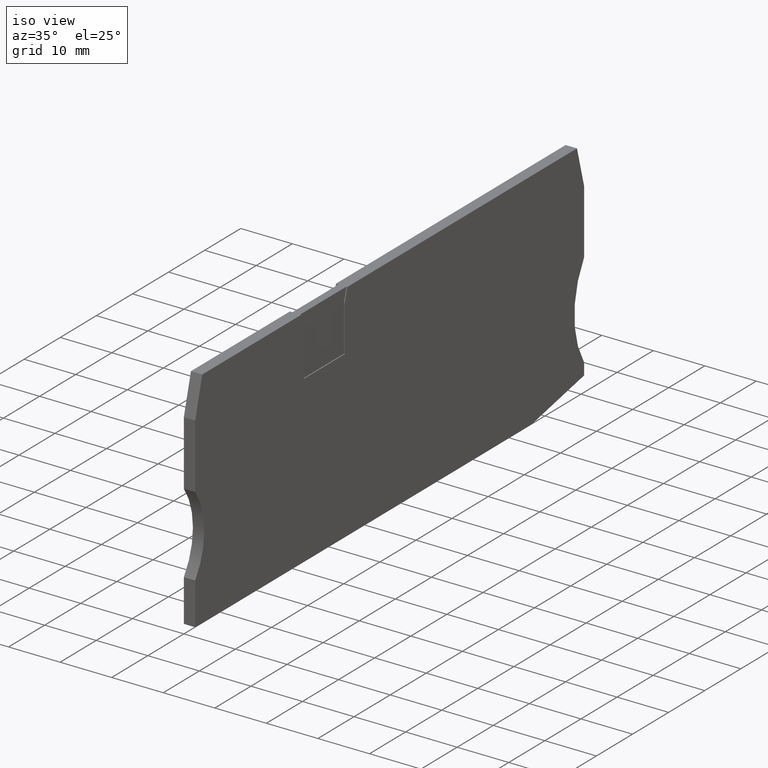
[diagram: clean part render]
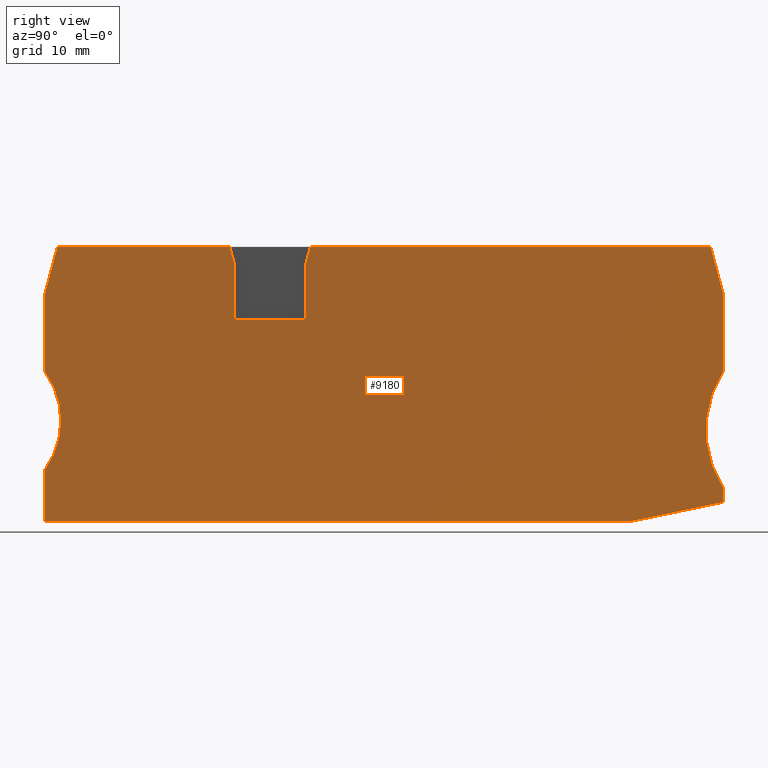
[diagram: tour spotlight — one face highlighted and labeled with its STEP entity id]
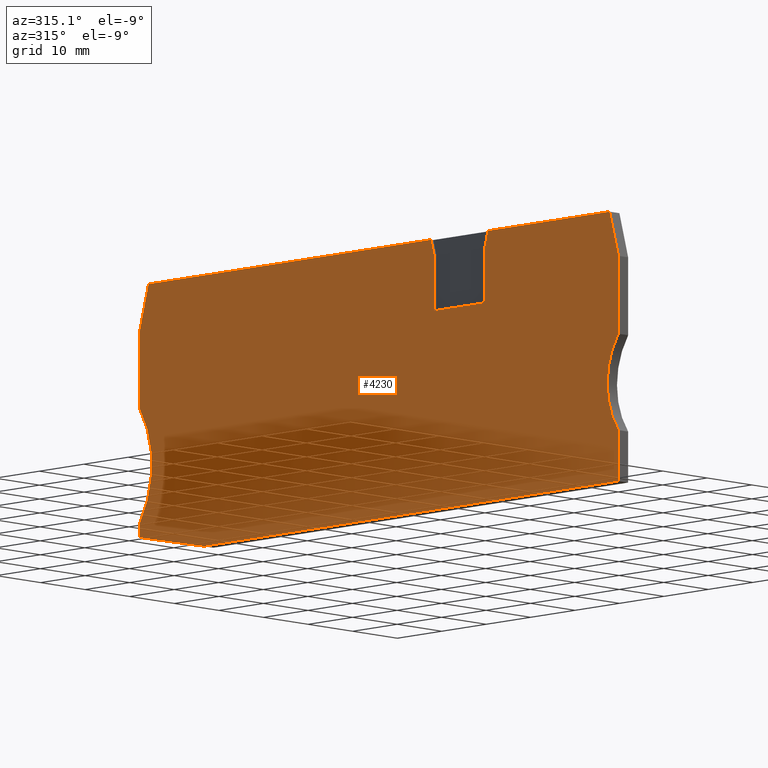
[diagram: tour spotlight — one face highlighted and labeled with its STEP entity id]
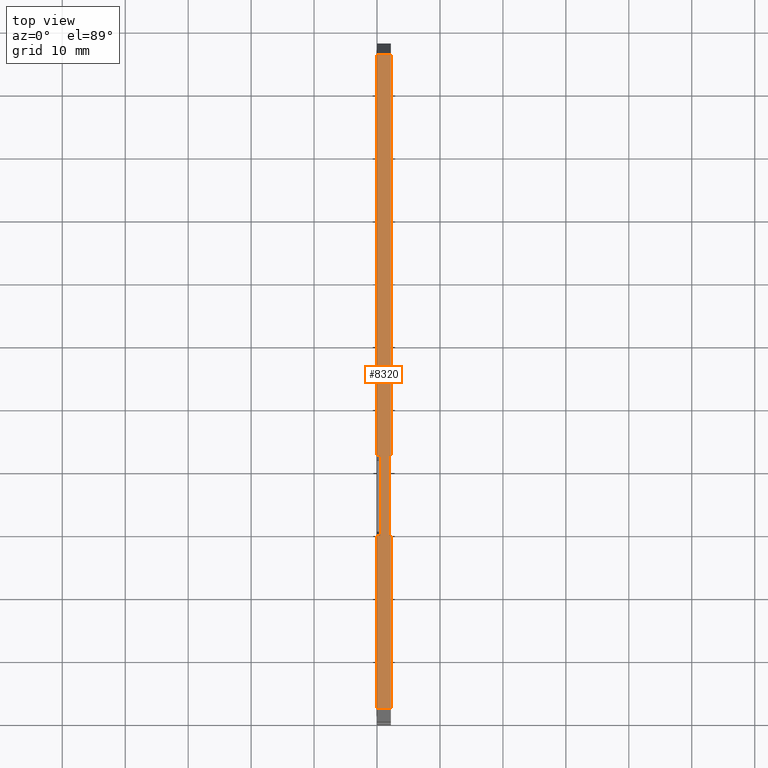
[diagram: tour spotlight — one face highlighted and labeled with its STEP entity id]
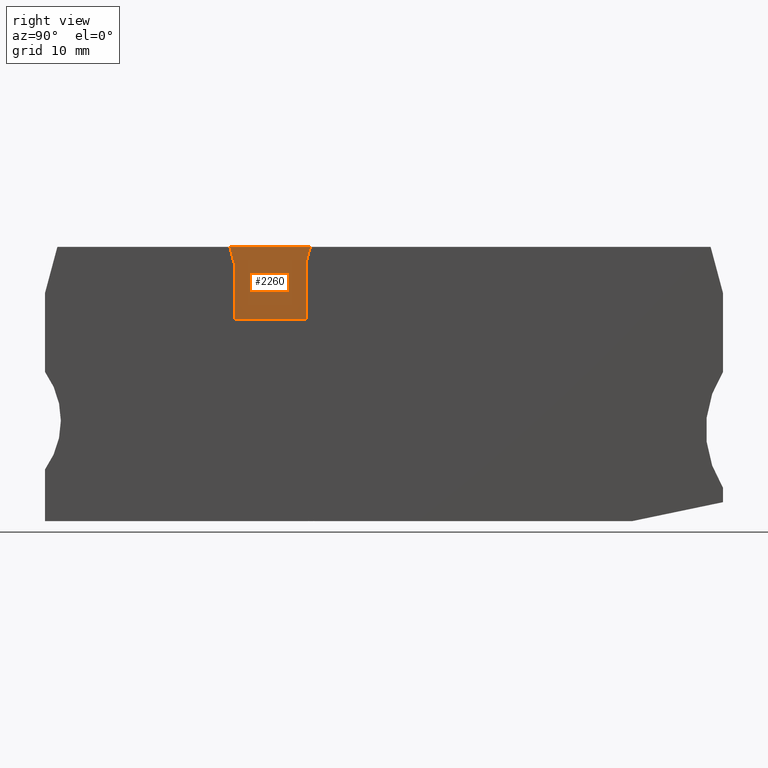
[diagram: tour spotlight — one face highlighted and labeled with its STEP entity id]
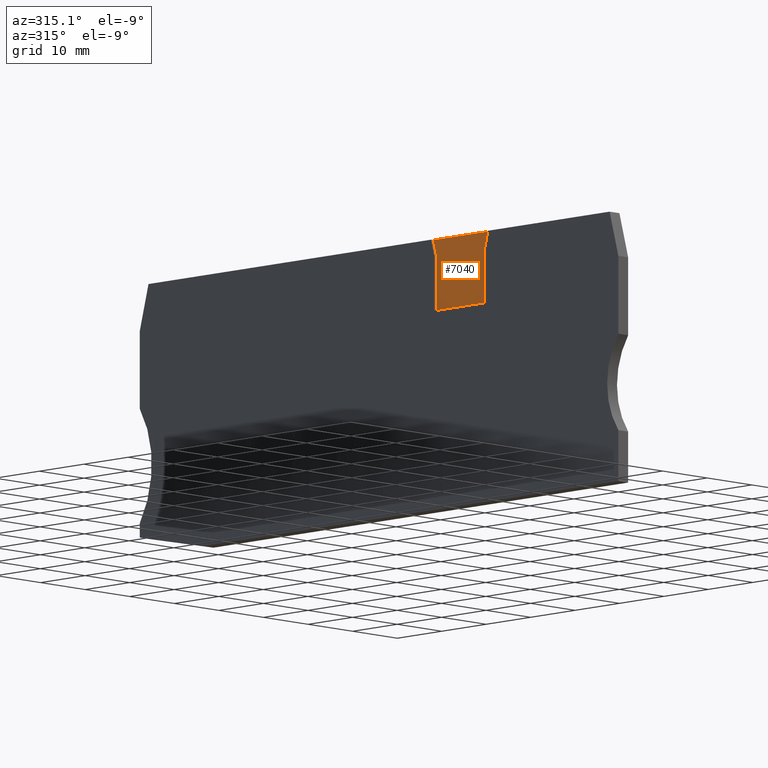
[diagram: tour spotlight — one face highlighted and labeled with its STEP entity id]
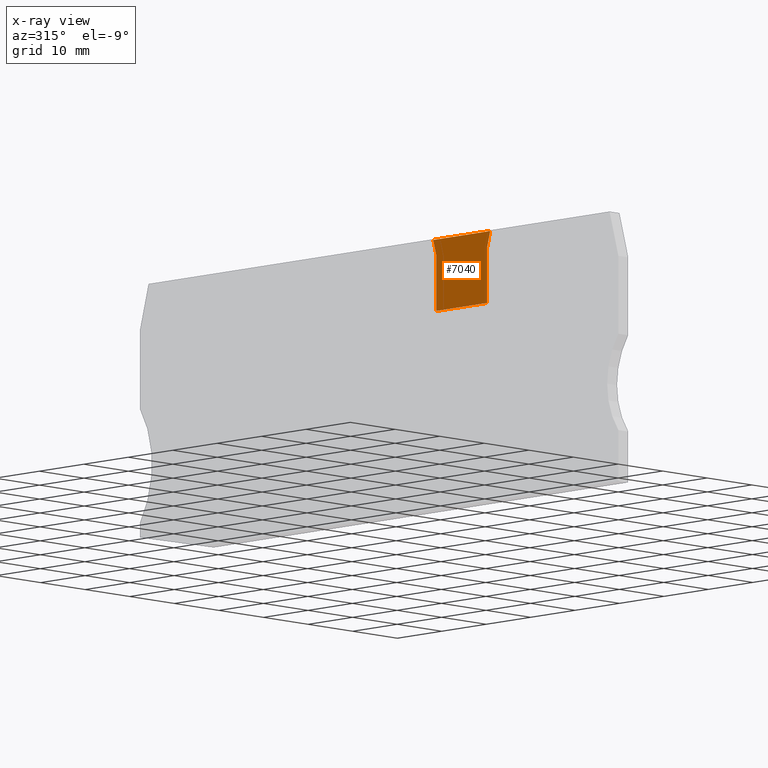
[diagram: x-ray of the same camera — body ghosted, this tour face saturated]
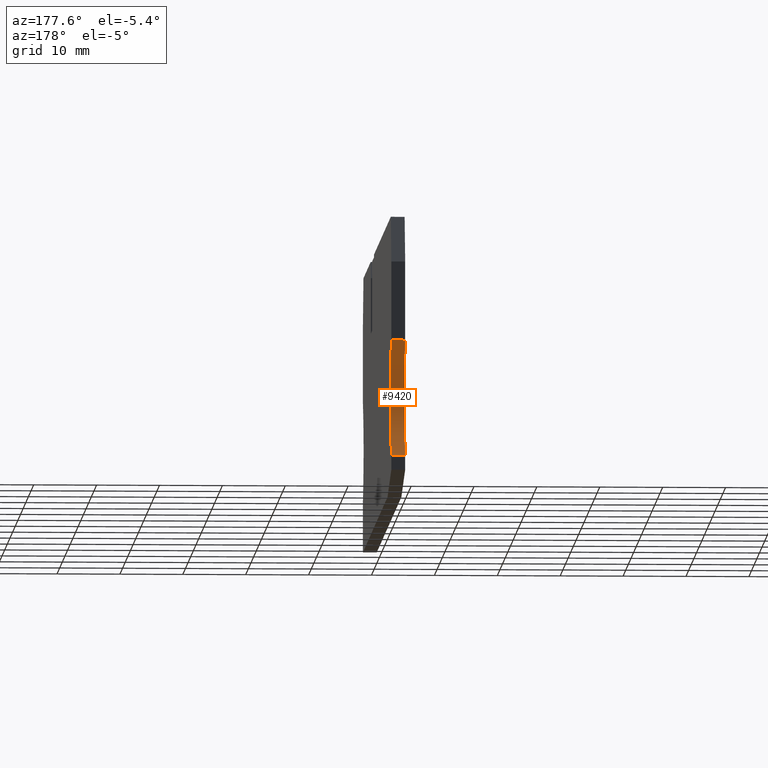
[diagram: tour spotlight — one face highlighted and labeled with its STEP entity id]
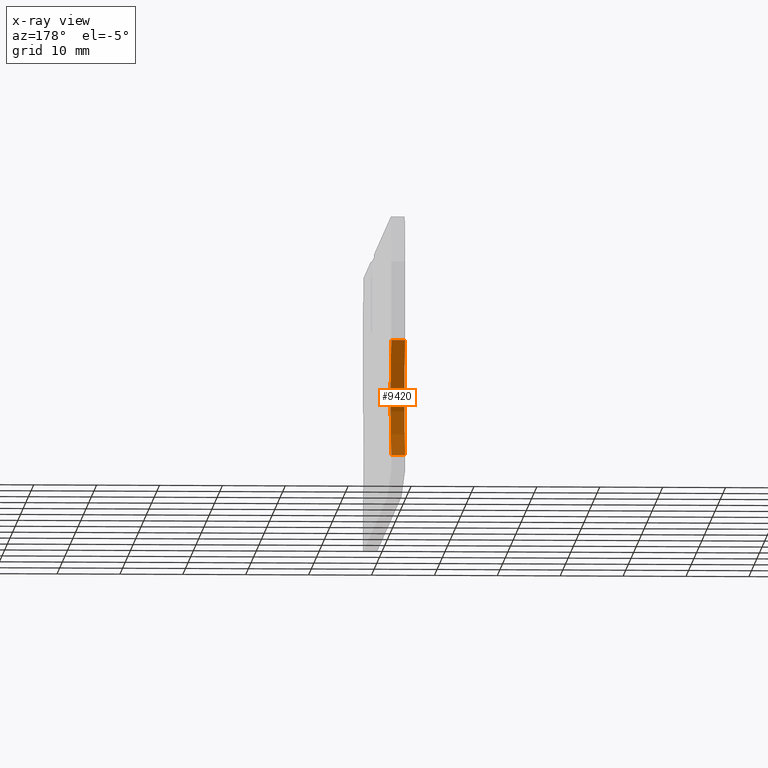
[diagram: x-ray of the same camera — body ghosted, this tour face saturated]
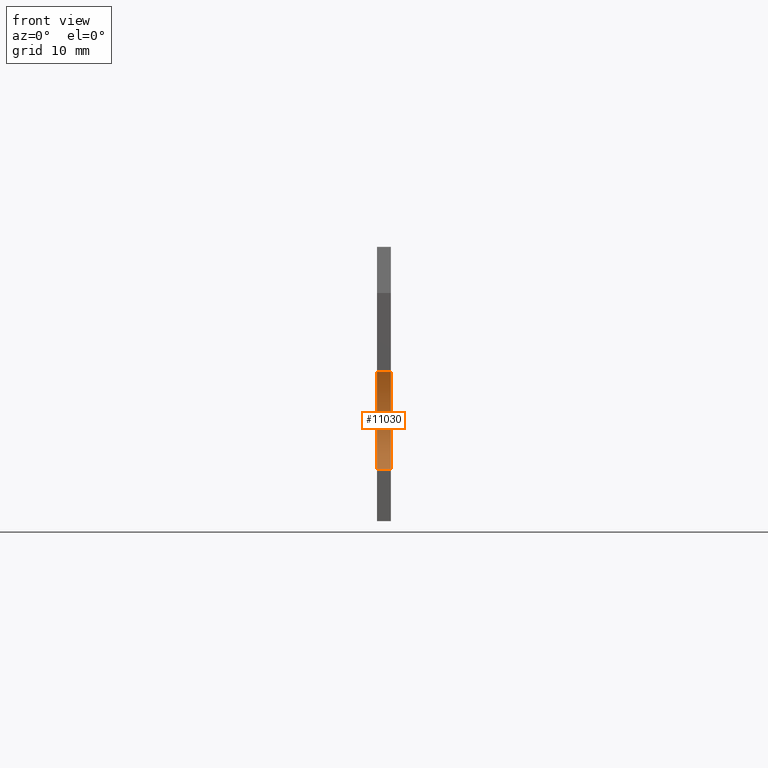
[diagram: tour spotlight — one face highlighted and labeled with its STEP entity id]
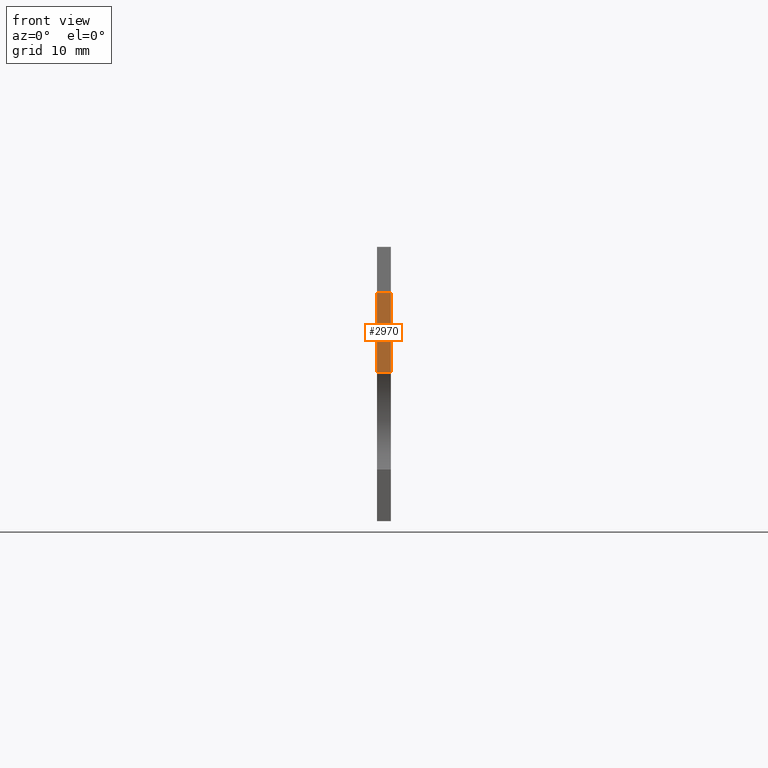
[diagram: tour spotlight — one face highlighted and labeled with its STEP entity id]
A machine part: a face-by-face anatomy tour. The part has 29 B-rep faces; the first image is the clean iso view, then the 8 largest visible faces are spotlighted one at a time (largest first), each with its STEP entity span.

Face 1 — right view, entity #9180. In plain terms, the highlighted planar face has unit normal (1, 0, -0).
Definition (entity closure, byte-faithful):
#60=CARTESIAN_POINT('',(-0.800000000000004,21.9231577655584,
11.999999999999));
#70=DIRECTION('',(0.,1.,3.03161873061274E-15));
#80=VECTOR('',#70,1.);
#90=LINE('',#60,#80);
#100=CARTESIAN_POINT('',(-0.800000000000004,0.199999999999154,
11.9999999999989));
#110=VERTEX_POINT('',#100);
#120=CARTESIAN_POINT('',(-0.800000000000004,0.222246685659826,
11.9999999999989));
#130=VERTEX_POINT('',#120);
#140=EDGE_CURVE('',#110,#130,#90,.T.);
#460=CARTESIAN_POINT('',(-6.9708756914192,0.199999999999154,
11.999999999999));
#470=DIRECTION('',(1.,0.,-2.46209646432131E-14));
#480=VECTOR('',#470,1.);
#490=LINE('',#460,#480);
#500=CARTESIAN_POINT('',(-42.550000000006,0.199999999999154,
11.9999999999999));
#510=VERTEX_POINT('',#500);
#520=EDGE_CURVE('',#510,#110,#490,.T.);
#600=CARTESIAN_POINT('',(-0.52176102136936,0.200000000000884,
11.9999999999989));
#610=VERTEX_POINT('',#600);
#640=CARTESIAN_POINT('',(-6.9708756914192,0.199999999999154,
11.999999999999));
#650=DIRECTION('',(1.,7.41529250907751E-29,-2.46209646432131E-14));
#660=VECTOR('',#650,1.);
#670=LINE('',#640,#660);
#680=CARTESIAN_POINT('',(0.021761021369648,0.199999999999154,
11.9999999999989));
#690=VERTEX_POINT('',#680);
#700=EDGE_CURVE('',#610,#690,#670,.T.);
#800=CARTESIAN_POINT('',(0.299999999999997,0.199999999999154,
11.9999999999989));
#810=VERTEX_POINT('',#800);
#840=CARTESIAN_POINT('',(-6.9708756914192,0.199999999999154,
11.999999999999));
#850=DIRECTION('',(1.,7.41529250907751E-29,-2.46209646432131E-14));
#860=VECTOR('',#850,1.);
#870=LINE('',#840,#860);
#880=CARTESIAN_POINT('',(50.7607405559825,0.199999999999154,
11.9999999999976));
#890=VERTEX_POINT('',#880);
#900=EDGE_CURVE('',#810,#890,#870,.T.);
#2400=CARTESIAN_POINT('',(-0.250000000000142,5.34999999999917,
11.9999999999989));
#2410=DIRECTION('',(2.46209646432131E-14,-3.03161873061274E-15,1.));
#2420=DIRECTION('',(-1.,0.,2.46209646432131E-14));
#2430=AXIS2_PLACEMENT_3D('',#2400,#2410,#2420);
#2440=CIRCLE('',#2430,5.15716531175005);
#2450=EDGE_CURVE('',#130,#610,#2440,.T.);
#2690=CARTESIAN_POINT('',(-42.550000000006,23.9000000000077,
12.0000000000002));
#2700=VERTEX_POINT('',#2690);
#2850=CARTESIAN_POINT('',(-42.550000000006,36.4298018960399,12.));
#2860=VERTEX_POINT('',#2850);
#2890=CARTESIAN_POINT('',(-42.550000000006,21.9231577655584,12.));
#2900=DIRECTION('',(0.,-1.,-3.03161873061274E-15));
#2910=VECTOR('',#2900,1.);
#2920=LINE('',#2890,#2910);
#2930=EDGE_CURVE('',#2860,#2700,#2920,.T.);
#4360=CARTESIAN_POINT('',(0.299999999999996,0.222246685659854,
11.9999999999989));
#4370=VERTEX_POINT('',#4360);
#4410=CARTESIAN_POINT('',(-0.250000000000142,5.34999999999917,
11.9999999999989));
#4420=DIRECTION('',(2.46209646432131E-14,-3.03161873061274E-15,1.));
#4430=DIRECTION('',(-1.,0.,2.46209646432131E-14));
#4440=AXIS2_PLACEMENT_3D('',#4410,#4420,#4430);
#4450=CIRCLE('',#4440,5.15716531175005);
#4460=EDGE_CURVE('',#690,#4370,#4450,.T.);
#4630=CARTESIAN_POINT('',(-6.24339023168411,21.9231577655584,
11.9999999999991));
#4640=DIRECTION('',(-0.258819045102521,-0.965925826289068,
3.44169137633799E-15));
#4650=VECTOR('',#4640,1.);
#4660=LINE('',#4630,#4650);
#4670=CARTESIAN_POINT('',(-0.394905481644173,43.7499999999991,
11.999999999999));
#4680=VERTEX_POINT('',#4670);
#4690=CARTESIAN_POINT('',(-1.10000000000001,41.1185514333568,
11.999999999999));
#4700=VERTEX_POINT('',#4690);
#4710=EDGE_CURVE('',#4680,#4700,#4660,.T.);
#5050=CARTESIAN_POINT('',(-12.5,41.1185514333569,11.9999999999993));
#5060=VERTEX_POINT('',#5050);
#5090=CARTESIAN_POINT('',(-7.35660976831576,21.9231577655584,
11.9999999999991));
#5100=DIRECTION('',(-0.258819045102528,0.965925826289066,
9.33975119465913E-15));
#5110=VECTOR('',#5100,1.);
#5120=LINE('',#5090,#5110);
#5130=CARTESIAN_POINT('',(-13.2050945183559,43.7499999999991,
11.9999999999993));
#5140=VERTEX_POINT('',#5130);
#5150=EDGE_CURVE('',#5060,#5140,#5120,.T.);
#5740=CARTESIAN_POINT('',(65.15,23.8929320676267,11.999999999997));
#5750=VERTEX_POINT('',#5740);
#5780=CARTESIAN_POINT('',(65.15,21.9231577655584,11.9999999999973));
#5790=DIRECTION('',(0.,1.,3.03161873061274E-15));
#5800=VECTOR('',#5790,1.);
#5810=LINE('',#5780,#5800);
#5820=CARTESIAN_POINT('',(65.15,36.42980189609,11.9999999999974));
#5830=VERTEX_POINT('',#5820);
#5840=EDGE_CURVE('',#5750,#5830,#5810,.T.);
#6120=CARTESIAN_POINT('',(65.15,3.20050871977324,11.9999999999973));
#6130=VERTEX_POINT('',#6120);
#6180=CARTESIAN_POINT('',(-6.9708756914192,-11.8384387140237,
11.999999999999));
#6190=DIRECTION('',(0.978943097300313,0.20413331978898,
-2.34950947586299E-14));
#6200=VECTOR('',#6190,1.);
#6210=LINE('',#6180,#6200);
#6220=EDGE_CURVE('',#890,#6130,#6210,.T.);
#6430=CARTESIAN_POINT('',(-40.5885588295767,43.7499999999991,12.));
#6440=VERTEX_POINT('',#6430);
#6470=CARTESIAN_POINT('',(-46.4370435797288,21.9231577655584,
12.0000000000001));
#6480=DIRECTION('',(-0.25881904510715,-0.965925826287828,
3.41393580072236E-15));
#6490=VECTOR('',#6480,1.);
#6500=LINE('',#6470,#6490);
#6510=EDGE_CURVE('',#6440,#2860,#6500,.T.);
#7410=CARTESIAN_POINT('',(-42.550000000006,21.9231577655584,12.));
#7420=DIRECTION('',(0.,-1.,-3.03161873061274E-15));
#7430=VECTOR('',#7420,1.);
#7440=LINE('',#7410,#7430);
#7450=CARTESIAN_POINT('',(-42.550000000006,8.39999999998958,
12.0000000000002));
#7460=VERTEX_POINT('',#7450);
#7470=EDGE_CURVE('',#7460,#510,#7440,.T.);
#8100=CARTESIAN_POINT('',(63.1885588296183,43.7499999999991,
11.9999999999974));
#8110=VERTEX_POINT('',#8100);
#8140=CARTESIAN_POINT('',(-6.9708756914192,43.7499999999991,
11.9999999999992));
#8150=DIRECTION('',(-1.,0.,2.46209646432131E-14));
#8160=VECTOR('',#8150,1.);
#8170=LINE('',#8140,#8160);
#8180=EDGE_CURVE('',#8110,#4680,#8170,.T.);
#8230=CARTESIAN_POINT('',(-6.9708756914192,43.7499999999991,
11.9999999999992));
#8240=DIRECTION('',(-1.,0.,2.46209646432131E-14));
#8250=VECTOR('',#8240,1.);
#8260=LINE('',#8230,#8250);
#8270=EDGE_CURVE('',#5140,#6440,#8260,.T.);
#8400=CARTESIAN_POINT('',(13.190775127877,22.9303289999949,
11.9999999999986));
#8410=DIRECTION('',(2.46209646432131E-14,-3.03161873061274E-15,1.));
#8420=DIRECTION('',(1.,-1.94289029309405E-15,-2.46209646432131E-14));
#8430=AXIS2_PLACEMENT_3D('',#8400,#8410,#8420);
#8440=PLANE('',#8430);
#8450=CARTESIAN_POINT('',(79.4499999999999,14.7,11.999999999997));
#8460=DIRECTION('',(0.,0.,1.));
#8470=DIRECTION('',(1.,0.,0.));
#8480=AXIS2_PLACEMENT_3D('',#8450,#8460,#8470);
#8490=CIRCLE('',#8480,16.9999999999999);
#8500=CARTESIAN_POINT('',(65.15,5.5070679323733,11.999999999997));
#8510=VERTEX_POINT('',#8500);
#8520=EDGE_CURVE('',#5750,#8510,#8490,.T.);
#8530=ORIENTED_EDGE('',*,*,#8520,.F.);
#8540=CARTESIAN_POINT('',(65.15,21.9231577655584,11.9999999999973));
#8550=DIRECTION('',(0.,1.,3.03161873061274E-15));
#8560=VECTOR('',#8550,1.);
#8570=LINE('',#8540,#8560);
#8580=EDGE_CURVE('',#6130,#8510,#8570,.T.);
#8590=ORIENTED_EDGE('',*,*,#8580,.T.);
#8600=ORIENTED_EDGE('',*,*,#6220,.T.);
#8610=ORIENTED_EDGE('',*,*,#900,.T.);
#8620=CARTESIAN_POINT('',(0.299999999999997,21.9231577655584,
11.9999999999989));
#8630=DIRECTION('',(0.,-1.,-3.03161873061274E-15));
#8640=VECTOR('',#8630,1.);
#8650=LINE('',#8620,#8640);
#8660=EDGE_CURVE('',#4370,#810,#8650,.T.);
#8670=ORIENTED_EDGE('',*,*,#8660,.T.);
#8680=ORIENTED_EDGE('',*,*,#4460,.T.);
#8690=ORIENTED_EDGE('',*,*,#700,.T.);
#8700=ORIENTED_EDGE('',*,*,#2450,.T.);
#8710=ORIENTED_EDGE('',*,*,#140,.T.);
#8720=ORIENTED_EDGE('',*,*,#520,.T.);
#8730=ORIENTED_EDGE('',*,*,#7470,.T.);
#8740=CARTESIAN_POINT('',(-53.2353872180651,16.1499999999986,
12.0000000000002));
#8750=DIRECTION('',(0.,0.,1.));
#8760=DIRECTION('',(1.,0.,0.));
#8770=AXIS2_PLACEMENT_3D('',#8740,#8750,#8760);
#8780=CIRCLE('',#8770,13.2);
#8790=EDGE_CURVE('',#7460,#2700,#8780,.T.);
#8800=ORIENTED_EDGE('',*,*,#8790,.F.);
#8810=ORIENTED_EDGE('',*,*,#2930,.T.);
#8820=ORIENTED_EDGE('',*,*,#6510,.T.);
#8830=ORIENTED_EDGE('',*,*,#8270,.T.);
#8840=ORIENTED_EDGE('',*,*,#5150,.T.);
#8850=CARTESIAN_POINT('',(-12.5,21.9231577655584,11.9999999999992));
#8860=DIRECTION('',(0.,1.,3.03161873061274E-15));
#8870=VECTOR('',#8860,1.);
#8880=LINE('',#8850,#8870);
#8890=CARTESIAN_POINT('',(-12.5,32.2499999999992,11.9999999999993));
#8900=VERTEX_POINT('',#8890);
#8910=EDGE_CURVE('',#8900,#5060,#8880,.T.);
#8920=ORIENTED_EDGE('',*,*,#8910,.T.);
#8930=CARTESIAN_POINT('',(-6.9708756914192,32.2499999999992,
11.9999999999991));
#8940=DIRECTION('',(-1.,0.,2.46209646432131E-14));
#8950=VECTOR('',#8940,1.);
#8960=LINE('',#8930,#8950);
#8970=CARTESIAN_POINT('',(-1.10000000000001,32.2499999999992,
11.999999999999));
#8980=VERTEX_POINT('',#8970);
#8990=EDGE_CURVE('',#8980,#8900,#8960,.T.);
#9000=ORIENTED_EDGE('',*,*,#8990,.T.);
#9010=CARTESIAN_POINT('',(-1.10000000000001,21.9231577655584,
11.999999999999));
#9020=DIRECTION('',(0.,-1.,-3.03161873061274E-15));
#9030=VECTOR('',#9020,1.);
#9040=LINE('',#9010,#9030);
#9050=EDGE_CURVE('',#4700,#8980,#9040,.T.);
#9060=ORIENTED_EDGE('',*,*,#9050,.T.);
#9070=ORIENTED_EDGE('',*,*,#4710,.T.);
#9080=ORIENTED_EDGE('',*,*,#8180,.T.);
#9090=CARTESIAN_POINT('',(69.0370435796684,21.9231577655584,
11.9999999999972));
#9100=DIRECTION('',(-0.258819045102939,0.965925826288956,
9.32587340685131E-15));
#9110=VECTOR('',#9100,1.);
#9120=LINE('',#9090,#9110);
#9130=EDGE_CURVE('',#5830,#8110,#9120,.T.);
#9140=ORIENTED_EDGE('',*,*,#9130,.T.);
#9150=ORIENTED_EDGE('',*,*,#5840,.T.);
#9160=EDGE_LOOP('',(#9150,#9140,#9080,#9070,#9060,#9000,#8920,#8840,
#8830,#8820,#8810,#8800,#8730,#8720,#8710,#8700,#8690,#8680,#8670,#8610,
#8600,#8590,#8530));
#9170=FACE_OUTER_BOUND('',#9160,.T.);
#9180=ADVANCED_FACE('',(#9170),#8440,.T.);

Face 2 — auxiliary view, entity #4230. In plain terms, the highlighted planar face has unit normal (-1, 0, -0).
Definition (entity closure, byte-faithful):
#960=CARTESIAN_POINT('',(50.7607405559826,0.199999999999154,9.8));
#970=VERTEX_POINT('',#960);
#1000=CARTESIAN_POINT('',(-6.9708756914192,0.199999999999154,9.8));
#1010=DIRECTION('',(-1.,0.,0.));
#1020=VECTOR('',#1010,1.);
#1030=LINE('',#1000,#1020);
#1040=CARTESIAN_POINT('',(-42.550000000006,0.199999999999154,9.8));
#1050=VERTEX_POINT('',#1040);
#1060=EDGE_CURVE('',#970,#1050,#1030,.T.);
#1430=CARTESIAN_POINT('',(-1.10000000000001,32.2499999999992,9.8));
#1440=VERTEX_POINT('',#1430);
#1470=CARTESIAN_POINT('',(-1.10000000000001,21.9231577655584,9.8));
#1480=DIRECTION('',(0.,1.,0.));
#1490=VECTOR('',#1480,1.);
#1500=LINE('',#1470,#1490);
#1510=CARTESIAN_POINT('',(-1.10000000000001,41.1499999999991,9.8));
#1520=VERTEX_POINT('',#1510);
#1530=EDGE_CURVE('',#1440,#1520,#1500,.T.);
#2670=CARTESIAN_POINT('',(-42.550000000006,23.9000000000077,9.8));
#2680=VERTEX_POINT('',#2670);
#2730=CARTESIAN_POINT('',(-42.550000000006,21.9231577655584,9.8));
#2740=DIRECTION('',(0.,1.,0.));
#2750=VECTOR('',#2740,1.);
#2760=LINE('',#2730,#2750);
#2770=CARTESIAN_POINT('',(-42.550000000006,36.4298018960399,9.8));
#2780=VERTEX_POINT('',#2770);
#2790=EDGE_CURVE('',#2680,#2780,#2760,.T.);
#3050=CARTESIAN_POINT('',(11.299999999997,0.749999999999154,9.8));
#3060=DIRECTION('',(0.,0.,-1.));
#3070=DIRECTION('',(-1.,0.,0.));
#3080=AXIS2_PLACEMENT_3D('',#3050,#3060,#3070);
#3090=PLANE('',#3080);
#3100=CARTESIAN_POINT('',(65.15,21.9231577655584,9.8));
#3110=DIRECTION('',(0.,-1.,0.));
#3120=VECTOR('',#3110,1.);
#3130=LINE('',#3100,#3120);
#3140=CARTESIAN_POINT('',(65.15,36.4298018960901,9.8));
#3150=VERTEX_POINT('',#3140);
#3160=CARTESIAN_POINT('',(65.15,23.8929320676267,9.8));
#3170=VERTEX_POINT('',#3160);
#3180=EDGE_CURVE('',#3150,#3170,#3130,.T.);
#3190=ORIENTED_EDGE('',*,*,#3180,.T.);
#3200=CARTESIAN_POINT('',(69.0370435796684,21.9231577655584,9.8));
#3210=DIRECTION('',(0.258819045102939,-0.965925826288956,0.));
#3220=VECTOR('',#3210,1.);
#3230=LINE('',#3200,#3220);
#3240=CARTESIAN_POINT('',(63.1885588296183,43.7499999999991,9.8));
#3250=VERTEX_POINT('',#3240);
#3260=EDGE_CURVE('',#3250,#3150,#3230,.T.);
#3270=ORIENTED_EDGE('',*,*,#3260,.T.);
#3280=CARTESIAN_POINT('',(-6.9708756914192,43.7499999999991,9.8));
#3290=DIRECTION('',(1.,0.,0.));
#3300=VECTOR('',#3290,1.);
#3310=LINE('',#3280,#3300);
#3320=CARTESIAN_POINT('',(-0.403332099679097,43.7499999999991,9.8));
#3330=VERTEX_POINT('',#3320);
#3340=EDGE_CURVE('',#3330,#3250,#3310,.T.);
#3350=ORIENTED_EDGE('',*,*,#3340,.T.);
#3360=CARTESIAN_POINT('',(-6.25181684971903,21.9231577655584,9.8));
#3370=DIRECTION('',(0.258819045102521,0.965925826289068,0.));
#3380=VECTOR('',#3370,1.);
#3390=LINE('',#3360,#3380);
#3400=EDGE_CURVE('',#1520,#3330,#3390,.T.);
#3410=ORIENTED_EDGE('',*,*,#3400,.T.);
#3420=ORIENTED_EDGE('',*,*,#1530,.T.);
#3430=CARTESIAN_POINT('',(-6.9708756914192,32.2499999999992,9.8));
#3440=DIRECTION('',(1.,0.,0.));
#3450=VECTOR('',#3440,1.);
#3460=LINE('',#3430,#3450);
#3470=CARTESIAN_POINT('',(-12.5,32.2499999999992,9.8));
#3480=VERTEX_POINT('',#3470);
#3490=EDGE_CURVE('',#3480,#1440,#3460,.T.);
#3500=ORIENTED_EDGE('',*,*,#3490,.T.);
#3510=CARTESIAN_POINT('',(-12.5,21.9231577655584,9.8));
#3520=DIRECTION('',(0.,-1.,0.));
#3530=VECTOR('',#3520,1.);
#3540=LINE('',#3510,#3530);
#3550=CARTESIAN_POINT('',(-12.5,41.1499999999991,9.8));
#3560=VERTEX_POINT('',#3550);
#3570=EDGE_CURVE('',#3560,#3480,#3540,.T.);
#3580=ORIENTED_EDGE('',*,*,#3570,.T.);
#3590=CARTESIAN_POINT('',(-7.34818315028085,21.9231577655584,9.8));
#3600=DIRECTION('',(0.258819045102528,-0.965925826289066,0.));
#3610=VECTOR('',#3600,1.);
#3620=LINE('',#3590,#3610);
#3630=CARTESIAN_POINT('',(-13.1966679003209,43.7499999999991,9.8));
#3640=VERTEX_POINT('',#3630);
#3650=EDGE_CURVE('',#3640,#3560,#3620,.T.);
#3660=ORIENTED_EDGE('',*,*,#3650,.T.);
#3670=CARTESIAN_POINT('',(-6.9708756914192,43.7499999999991,9.8));
#3680=DIRECTION('',(1.,0.,0.));
#3690=VECTOR('',#3680,1.);
#3700=LINE('',#3670,#3690);
#3710=CARTESIAN_POINT('',(-40.5885588295767,43.7499999999991,9.8));
#3720=VERTEX_POINT('',#3710);
#3730=EDGE_CURVE('',#3720,#3640,#3700,.T.);
#3740=ORIENTED_EDGE('',*,*,#3730,.T.);
#3750=CARTESIAN_POINT('',(-46.4370435797288,21.9231577655584,9.8));
#3760=DIRECTION('',(0.25881904510715,0.965925826287828,0.));
#3770=VECTOR('',#3760,1.);
#3780=LINE('',#3750,#3770);
#3790=EDGE_CURVE('',#2780,#3720,#3780,.T.);
#3800=ORIENTED_EDGE('',*,*,#3790,.T.);
#3810=ORIENTED_EDGE('',*,*,#2790,.T.);
#3820=CARTESIAN_POINT('',(-53.2353872180651,16.1499999999986,9.8));
#3830=DIRECTION('',(0.,0.,1.));
#3840=DIRECTION('',(1.,0.,0.));
#3850=AXIS2_PLACEMENT_3D('',#3820,#3830,#3840);
#3860=CIRCLE('',#3850,13.2);
#3870=CARTESIAN_POINT('',(-42.550000000006,8.39999999998958,9.8));
#3880=VERTEX_POINT('',#3870);
#3890=EDGE_CURVE('',#3880,#2680,#3860,.T.);
#3900=ORIENTED_EDGE('',*,*,#3890,.T.);
#3910=CARTESIAN_POINT('',(-42.550000000006,21.9231577655584,9.8));
#3920=DIRECTION('',(0.,1.,0.));
#3930=VECTOR('',#3920,1.);
#3940=LINE('',#3910,#3930);
#3950=EDGE_CURVE('',#1050,#3880,#3940,.T.);
#3960=ORIENTED_EDGE('',*,*,#3950,.T.);
#3970=ORIENTED_EDGE('',*,*,#1060,.T.);
#3980=CARTESIAN_POINT('',(-6.9708756914192,-11.8384387140237,9.8));
#3990=DIRECTION('',(-0.978943097300313,-0.20413331978898,0.));
#4000=VECTOR('',#3990,1.);
#4010=LINE('',#3980,#4000);
#4020=CARTESIAN_POINT('',(65.15,3.20050871977324,9.8));
#4030=VERTEX_POINT('',#4020);
#4040=EDGE_CURVE('',#4030,#970,#4010,.T.);
#4050=ORIENTED_EDGE('',*,*,#4040,.T.);
#4060=CARTESIAN_POINT('',(65.15,21.9231577655584,9.8));
#4070=DIRECTION('',(0.,-1.,0.));
#4080=VECTOR('',#4070,1.);
#4090=LINE('',#4060,#4080);
#4100=CARTESIAN_POINT('',(65.15,5.5070679323733,9.8));
#4110=VERTEX_POINT('',#4100);
#4120=EDGE_CURVE('',#4110,#4030,#4090,.T.);
#4130=ORIENTED_EDGE('',*,*,#4120,.T.);
#4140=CARTESIAN_POINT('',(79.4499999999999,14.7,9.8));
#4150=DIRECTION('',(0.,0.,1.));
#4160=DIRECTION('',(1.,0.,0.));
#4170=AXIS2_PLACEMENT_3D('',#4140,#4150,#4160);
#4180=CIRCLE('',#4170,16.9999999999999);
#4190=EDGE_CURVE('',#3170,#4110,#4180,.T.);
#4200=ORIENTED_EDGE('',*,*,#4190,.T.);
#4210=EDGE_LOOP('',(#4200,#4130,#4050,#3970,#3960,#3900,#3810,#3800,
#3740,#3660,#3580,#3500,#3420,#3410,#3350,#3270,#3190));
#4220=FACE_OUTER_BOUND('',#4210,.T.);
#4230=ADVANCED_FACE('',(#4220),#3090,.T.);

Face 3 — top view, entity #8320. In plain terms, the highlighted planar face has unit normal (-0, -0, 1).
Definition (entity closure, byte-faithful):
#1800=CARTESIAN_POINT('',(-0.394905481644178,43.7499999999991,11.8));
#1810=VERTEX_POINT('',#1800);
#2140=CARTESIAN_POINT('',(-13.2050945183559,43.7499999999991,11.8));
#2150=VERTEX_POINT('',#2140);
#2180=CARTESIAN_POINT('',(-6.9708756914192,43.7499999999991,11.8));
#2190=DIRECTION('',(-1.,0.,0.));
#2200=VECTOR('',#2190,1.);
#2210=LINE('',#2180,#2200);
#2220=EDGE_CURVE('',#1810,#2150,#2210,.T.);
#3240=CARTESIAN_POINT('',(63.1885588296183,43.7499999999991,9.8));
#3250=VERTEX_POINT('',#3240);
#3280=CARTESIAN_POINT('',(-6.9708756914192,43.7499999999991,9.8));
#3290=DIRECTION('',(1.,0.,0.));
#3300=VECTOR('',#3290,1.);
#3310=LINE('',#3280,#3300);
#3320=CARTESIAN_POINT('',(-0.403332099679097,43.7499999999991,9.8));
#3330=VERTEX_POINT('',#3320);
#3340=EDGE_CURVE('',#3330,#3250,#3310,.T.);
#3630=CARTESIAN_POINT('',(-13.1966679003209,43.7499999999991,9.8));
#3640=VERTEX_POINT('',#3630);
#3670=CARTESIAN_POINT('',(-6.9708756914192,43.7499999999991,9.8));
#3680=DIRECTION('',(1.,0.,0.));
#3690=VECTOR('',#3680,1.);
#3700=LINE('',#3670,#3690);
#3710=CARTESIAN_POINT('',(-40.5885588295767,43.7499999999991,9.8));
#3720=VERTEX_POINT('',#3710);
#3730=EDGE_CURVE('',#3720,#3640,#3700,.T.);
#4670=CARTESIAN_POINT('',(-0.394905481644173,43.7499999999991,
11.999999999999));
#4680=VERTEX_POINT('',#4670);
#4800=CARTESIAN_POINT('',(-0.394905481644173,43.7499999999991,12.));
#4810=DIRECTION('',(2.54332844338398E-14,0.,1.));
#4820=VECTOR('',#4810,1.);
#4830=LINE('',#4800,#4820);
#4840=EDGE_CURVE('',#1810,#4680,#4830,.T.);
#5130=CARTESIAN_POINT('',(-13.2050945183559,43.7499999999991,
11.9999999999993));
#5140=VERTEX_POINT('',#5130);
#5170=CARTESIAN_POINT('',(-13.2050945183559,43.7499999999991,12.));
#5180=DIRECTION('',(8.12319790626774E-16,-3.03161873061274E-15,1.));
#5190=VECTOR('',#5180,1.);
#5200=LINE('',#5170,#5190);
#5210=EDGE_CURVE('',#2150,#5140,#5200,.T.);
#6390=CARTESIAN_POINT('',(-40.5885588295767,43.7499999999991,12.));
#6400=DIRECTION('',(0.,0.,-1.));
#6410=VECTOR('',#6400,1.);
#6420=LINE('',#6390,#6410);
#6430=CARTESIAN_POINT('',(-40.5885588295767,43.7499999999991,12.));
#6440=VERTEX_POINT('',#6430);
#6450=EDGE_CURVE('',#6440,#3720,#6420,.T.);
#6700=CARTESIAN_POINT('',(-6.9708756914192,43.7499999999991,10.3));
#6710=DIRECTION('',(-1.,0.,0.));
#6720=VECTOR('',#6710,1.);
#6730=LINE('',#6700,#6720);
#6740=CARTESIAN_POINT('',(-0.403332099679094,43.7499999999991,10.3));
#6750=VERTEX_POINT('',#6740);
#6760=CARTESIAN_POINT('',(-13.1966679003209,43.7499999999991,10.3));
#6770=VERTEX_POINT('',#6760);
#6780=EDGE_CURVE('',#6750,#6770,#6730,.T.);
#7740=CARTESIAN_POINT('',(-0.403332099679096,43.7499999999991,12.));
#7750=DIRECTION('',(0.,0.,1.));
#7760=VECTOR('',#7750,1.);
#7770=LINE('',#7740,#7760);
#7780=EDGE_CURVE('',#3330,#6750,#7770,.T.);
#7910=CARTESIAN_POINT('',(-13.1966679003209,43.7499999999991,10.3));
#7920=DIRECTION('',(0.,1.,-0.));
#7930=DIRECTION('',(-1.,0.,0.));
#7940=AXIS2_PLACEMENT_3D('',#7910,#7920,#7930);
#7950=PLANE('',#7940);
#7960=ORIENTED_EDGE('',*,*,#3730,.F.);
#7970=CARTESIAN_POINT('',(-13.1966679003209,43.7499999999991,12.));
#7980=DIRECTION('',(0.,0.,-1.));
#7990=VECTOR('',#7980,1.);
#8000=LINE('',#7970,#7990);
#8010=EDGE_CURVE('',#6770,#3640,#8000,.T.);
#8020=ORIENTED_EDGE('',*,*,#8010,.T.);
#8030=ORIENTED_EDGE('',*,*,#6780,.T.);
#8040=ORIENTED_EDGE('',*,*,#7780,.T.);
#8050=ORIENTED_EDGE('',*,*,#3340,.F.);
#8060=CARTESIAN_POINT('',(63.1885588296183,43.7499999999991,12.));
#8070=DIRECTION('',(0.,0.,1.));
#8080=VECTOR('',#8070,1.);
#8090=LINE('',#8060,#8080);
#8100=CARTESIAN_POINT('',(63.1885588296183,43.7499999999991,
11.9999999999974));
#8110=VERTEX_POINT('',#8100);
#8120=EDGE_CURVE('',#3250,#8110,#8090,.T.);
#8130=ORIENTED_EDGE('',*,*,#8120,.F.);
#8140=CARTESIAN_POINT('',(-6.9708756914192,43.7499999999991,
11.9999999999992));
#8150=DIRECTION('',(-1.,0.,2.46209646432131E-14));
#8160=VECTOR('',#8150,1.);
#8170=LINE('',#8140,#8160);
#8180=EDGE_CURVE('',#8110,#4680,#8170,.T.);
#8190=ORIENTED_EDGE('',*,*,#8180,.F.);
#8200=ORIENTED_EDGE('',*,*,#4840,.T.);
#8210=ORIENTED_EDGE('',*,*,#2220,.F.);
#8220=ORIENTED_EDGE('',*,*,#5210,.F.);
#8230=CARTESIAN_POINT('',(-6.9708756914192,43.7499999999991,
11.9999999999992));
#8240=DIRECTION('',(-1.,0.,2.46209646432131E-14));
#8250=VECTOR('',#8240,1.);
#8260=LINE('',#8230,#8250);
#8270=EDGE_CURVE('',#5140,#6440,#8260,.T.);
#8280=ORIENTED_EDGE('',*,*,#8270,.F.);
#8290=ORIENTED_EDGE('',*,*,#6450,.F.);
#8300=EDGE_LOOP('',(#8290,#8280,#8220,#8210,#8200,#8190,#8130,#8050,
#8040,#8030,#8020,#7960));
#8310=FACE_OUTER_BOUND('',#8300,.T.);
#8320=ADVANCED_FACE('',(#8310),#7950,.T.);

Face 4 — right view, entity #2260. In plain terms, the highlighted planar face has unit normal (1, -0, 0).
Definition (entity closure, byte-faithful):
#1710=CARTESIAN_POINT('',(15.0816801231024,24.7352962716558,11.8));
#1720=DIRECTION('',(0.,0.,1.));
#1730=DIRECTION('',(1.,0.,0.));
#1740=AXIS2_PLACEMENT_3D('',#1710,#1720,#1730);
#1750=PLANE('',#1740);
#1760=CARTESIAN_POINT('',(-6.24339023168411,21.9231577655584,11.8));
#1770=DIRECTION('',(-0.258819045102521,-0.965925826289068,0.));
#1780=VECTOR('',#1770,1.);
#1790=LINE('',#1760,#1780);
#1800=CARTESIAN_POINT('',(-0.394905481644178,43.7499999999991,11.8));
#1810=VERTEX_POINT('',#1800);
#1820=CARTESIAN_POINT('',(-1.10000000000001,41.1185514333569,11.8));
#1830=VERTEX_POINT('',#1820);
#1840=EDGE_CURVE('',#1810,#1830,#1790,.T.);
#1850=ORIENTED_EDGE('',*,*,#1840,.F.);
#1860=CARTESIAN_POINT('',(-1.10000000000001,21.9231577655584,11.8));
#1870=DIRECTION('',(0.,1.,0.));
#1880=VECTOR('',#1870,1.);
#1890=LINE('',#1860,#1880);
#1900=CARTESIAN_POINT('',(-1.10000000000001,32.2499999999992,11.8));
#1910=VERTEX_POINT('',#1900);
#1920=EDGE_CURVE('',#1910,#1830,#1890,.T.);
#1930=ORIENTED_EDGE('',*,*,#1920,.T.);
#1940=CARTESIAN_POINT('',(-6.9708756914192,32.2499999999992,11.8));
#1950=DIRECTION('',(1.,0.,0.));
#1960=VECTOR('',#1950,1.);
#1970=LINE('',#1940,#1960);
#1980=CARTESIAN_POINT('',(-12.5,32.2499999999992,11.8));
#1990=VERTEX_POINT('',#1980);
#2000=EDGE_CURVE('',#1990,#1910,#1970,.T.);
#2010=ORIENTED_EDGE('',*,*,#2000,.T.);
#2020=CARTESIAN_POINT('',(-12.5,21.9231577655584,11.8));
#2030=DIRECTION('',(0.,-1.,0.));
#2040=VECTOR('',#2030,1.);
#2050=LINE('',#2020,#2040);
#2060=CARTESIAN_POINT('',(-12.5,41.1185514333569,11.8));
#2070=VERTEX_POINT('',#2060);
#2080=EDGE_CURVE('',#2070,#1990,#2050,.T.);
#2090=ORIENTED_EDGE('',*,*,#2080,.T.);
#2100=CARTESIAN_POINT('',(-7.35660976831577,21.9231577655584,11.8));
#2110=DIRECTION('',(-0.258819045102528,0.965925826289066,0.));
#2120=VECTOR('',#2110,1.);
#2130=LINE('',#2100,#2120);
#2140=CARTESIAN_POINT('',(-13.2050945183559,43.7499999999991,11.8));
#2150=VERTEX_POINT('',#2140);
#2160=EDGE_CURVE('',#2070,#2150,#2130,.T.);
#2170=ORIENTED_EDGE('',*,*,#2160,.F.);
#2180=CARTESIAN_POINT('',(-6.9708756914192,43.7499999999991,11.8));
#2190=DIRECTION('',(-1.,0.,0.));
#2200=VECTOR('',#2190,1.);
#2210=LINE('',#2180,#2200);
#2220=EDGE_CURVE('',#1810,#2150,#2210,.T.);
#2230=ORIENTED_EDGE('',*,*,#2220,.T.);
#2240=EDGE_LOOP('',(#2230,#2170,#2090,#2010,#1930,#1850));
#2250=FACE_OUTER_BOUND('',#2240,.T.);
#2260=ADVANCED_FACE('',(#2250),#1750,.T.);

Face 5 — auxiliary view, entity #7040. An x-ray twin of the same camera follows (body ghosted, this face saturated) — the face is partly hidden behind the body. In plain terms, the highlighted planar face has unit normal (1, -0, 0).
Definition (entity closure, byte-faithful):
#1290=CARTESIAN_POINT('',(-1.10000000000001,21.9231577655584,10.3));
#1300=DIRECTION('',(0.,-1.,0.));
#1310=VECTOR('',#1300,1.);
#1320=LINE('',#1290,#1310);
#1330=CARTESIAN_POINT('',(-1.10000000000001,41.1499999999992,10.3));
#1340=VERTEX_POINT('',#1330);
#1350=CARTESIAN_POINT('',(-1.10000000000001,32.2499999999992,10.3));
#1360=VERTEX_POINT('',#1350);
#1370=EDGE_CURVE('',#1340,#1360,#1320,.T.);
#5430=CARTESIAN_POINT('',(-12.5,32.2499999999992,10.3));
#5440=VERTEX_POINT('',#5430);
#5490=CARTESIAN_POINT('',(-6.9708756914192,32.2499999999992,10.3));
#5500=DIRECTION('',(-1.,0.,0.));
#5510=VECTOR('',#5500,1.);
#5520=LINE('',#5490,#5510);
#5530=EDGE_CURVE('',#1360,#5440,#5520,.T.);
#6650=CARTESIAN_POINT('',(-7.07087569141919,21.9278114128575,10.3));
#6660=DIRECTION('',(0.,0.,1.));
#6670=DIRECTION('',(1.,0.,0.));
#6680=AXIS2_PLACEMENT_3D('',#6650,#6660,#6670);
#6690=PLANE('',#6680);
#6700=CARTESIAN_POINT('',(-6.9708756914192,43.7499999999991,10.3));
#6710=DIRECTION('',(-1.,0.,0.));
#6720=VECTOR('',#6710,1.);
#6730=LINE('',#6700,#6720);
#6740=CARTESIAN_POINT('',(-0.403332099679094,43.7499999999991,10.3));
#6750=VERTEX_POINT('',#6740);
#6760=CARTESIAN_POINT('',(-13.1966679003209,43.7499999999991,10.3));
#6770=VERTEX_POINT('',#6760);
#6780=EDGE_CURVE('',#6750,#6770,#6730,.T.);
#6790=ORIENTED_EDGE('',*,*,#6780,.F.);
#6800=CARTESIAN_POINT('',(-7.34818315028085,21.9231577655584,10.3));
#6810=DIRECTION('',(-0.258819045102528,0.965925826289066,0.));
#6820=VECTOR('',#6810,1.);
#6830=LINE('',#6800,#6820);
#6840=CARTESIAN_POINT('',(-12.5,41.1499999999991,10.3));
#6850=VERTEX_POINT('',#6840);
#6860=EDGE_CURVE('',#6850,#6770,#6830,.T.);
#6870=ORIENTED_EDGE('',*,*,#6860,.T.);
#6880=CARTESIAN_POINT('',(-12.5,21.9231577655584,10.3));
#6890=DIRECTION('',(0.,1.,0.));
#6900=VECTOR('',#6890,1.);
#6910=LINE('',#6880,#6900);
#6920=EDGE_CURVE('',#5440,#6850,#6910,.T.);
#6930=ORIENTED_EDGE('',*,*,#6920,.T.);
#6940=ORIENTED_EDGE('',*,*,#5530,.T.);
#6950=ORIENTED_EDGE('',*,*,#1370,.T.);
#6960=CARTESIAN_POINT('',(-6.25181684971903,21.9231577655584,10.3));
#6970=DIRECTION('',(-0.258819045102521,-0.965925826289068,0.));
#6980=VECTOR('',#6970,1.);
#6990=LINE('',#6960,#6980);
#7000=EDGE_CURVE('',#6750,#1340,#6990,.T.);
#7010=ORIENTED_EDGE('',*,*,#7000,.T.);
#7020=EDGE_LOOP('',(#7010,#6950,#6940,#6930,#6870,#6790));
#7030=FACE_OUTER_BOUND('',#7020,.T.);
#7040=ADVANCED_FACE('',(#7030),#6690,.F.);

Face 6 — auxiliary view, entity #9420. An x-ray twin of the same camera follows (body ghosted, this face saturated) — the face is partly hidden behind the body. In plain terms, the highlighted cylindrical surface (partial cylindrical patch) has radius 17 mm, axis along (1, -0, 0).
Definition (entity closure, byte-faithful):
#3160=CARTESIAN_POINT('',(65.15,23.8929320676267,9.8));
#3170=VERTEX_POINT('',#3160);
#4100=CARTESIAN_POINT('',(65.15,5.5070679323733,9.8));
#4110=VERTEX_POINT('',#4100);
#4140=CARTESIAN_POINT('',(79.4499999999999,14.7,9.8));
#4150=DIRECTION('',(0.,0.,1.));
#4160=DIRECTION('',(1.,0.,0.));
#4170=AXIS2_PLACEMENT_3D('',#4140,#4150,#4160);
#4180=CIRCLE('',#4170,16.9999999999999);
#4190=EDGE_CURVE('',#3170,#4110,#4180,.T.);
#5700=CARTESIAN_POINT('',(65.15,23.8929320676267,9.8));
#5710=DIRECTION('',(0.,0.,-1.));
#5720=VECTOR('',#5710,1.);
#5730=LINE('',#5700,#5720);
#5740=CARTESIAN_POINT('',(65.15,23.8929320676267,11.999999999997));
#5750=VERTEX_POINT('',#5740);
#5760=EDGE_CURVE('',#5750,#3170,#5730,.T.);
#8450=CARTESIAN_POINT('',(79.4499999999999,14.7,11.999999999997));
#8460=DIRECTION('',(0.,0.,1.));
#8470=DIRECTION('',(1.,0.,0.));
#8480=AXIS2_PLACEMENT_3D('',#8450,#8460,#8470);
#8490=CIRCLE('',#8480,16.9999999999999);
#8500=CARTESIAN_POINT('',(65.15,5.5070679323733,11.999999999997));
#8510=VERTEX_POINT('',#8500);
#8520=EDGE_CURVE('',#5750,#8510,#8490,.T.);
#9260=CARTESIAN_POINT('',(79.4499999999999,14.7,9.8));
#9270=DIRECTION('',(0.,0.,1.));
#9280=DIRECTION('',(1.,0.,0.));
#9290=AXIS2_PLACEMENT_3D('',#9260,#9270,#9280);
#9300=CYLINDRICAL_SURFACE('',#9290,16.9999999999999);
#9310=ORIENTED_EDGE('',*,*,#4190,.F.);
#9320=CARTESIAN_POINT('',(65.15,5.5070679323733,9.8));
#9330=DIRECTION('',(0.,0.,-1.));
#9340=VECTOR('',#9330,1.);
#9350=LINE('',#9320,#9340);
#9360=EDGE_CURVE('',#8510,#4110,#9350,.T.);
#9370=ORIENTED_EDGE('',*,*,#9360,.T.);
#9380=ORIENTED_EDGE('',*,*,#8520,.T.);
#9390=ORIENTED_EDGE('',*,*,#5760,.F.);
#9400=EDGE_LOOP('',(#9390,#9380,#9370,#9310));
#9410=FACE_OUTER_BOUND('',#9400,.T.);
#9420=ADVANCED_FACE('',(#9410),#9300,.F.);

Face 7 — front view, entity #11030. In plain terms, the highlighted cylindrical surface (partial cylindrical patch) has radius 13.2 mm, axis along (1, -0, 0).
Definition (entity closure, byte-faithful):
#2630=CARTESIAN_POINT('',(-42.550000000006,23.9000000000077,9.8));
#2640=DIRECTION('',(0.,0.,1.));
#2650=VECTOR('',#2640,1.);
#2660=LINE('',#2630,#2650);
#2670=CARTESIAN_POINT('',(-42.550000000006,23.9000000000077,9.8));
#2680=VERTEX_POINT('',#2670);
#2690=CARTESIAN_POINT('',(-42.550000000006,23.9000000000077,
12.0000000000002));
#2700=VERTEX_POINT('',#2690);
#2710=EDGE_CURVE('',#2680,#2700,#2660,.T.);
#3820=CARTESIAN_POINT('',(-53.2353872180651,16.1499999999986,9.8));
#3830=DIRECTION('',(0.,0.,1.));
#3840=DIRECTION('',(1.,0.,0.));
#3850=AXIS2_PLACEMENT_3D('',#3820,#3830,#3840);
#3860=CIRCLE('',#3850,13.2);
#3870=CARTESIAN_POINT('',(-42.550000000006,8.39999999998958,9.8));
#3880=VERTEX_POINT('',#3870);
#3890=EDGE_CURVE('',#3880,#2680,#3860,.T.);
#7450=CARTESIAN_POINT('',(-42.550000000006,8.39999999998958,
12.0000000000002));
#7460=VERTEX_POINT('',#7450);
#7510=CARTESIAN_POINT('',(-42.550000000006,8.39999999998958,9.8));
#7520=DIRECTION('',(0.,0.,1.));
#7530=VECTOR('',#7520,1.);
#7540=LINE('',#7510,#7530);
#7550=EDGE_CURVE('',#3880,#7460,#7540,.T.);
#8740=CARTESIAN_POINT('',(-53.2353872180651,16.1499999999986,
12.0000000000002));
#8750=DIRECTION('',(0.,0.,1.));
#8760=DIRECTION('',(1.,0.,0.));
#8770=AXIS2_PLACEMENT_3D('',#8740,#8750,#8760);
#8780=CIRCLE('',#8770,13.2);
#8790=EDGE_CURVE('',#7460,#2700,#8780,.T.);
#10920=CARTESIAN_POINT('',(-53.2353872180651,16.1499999999986,9.8));
#10930=DIRECTION('',(0.,0.,1.));
#10940=DIRECTION('',(1.,0.,0.));
#10950=AXIS2_PLACEMENT_3D('',#10920,#10930,#10940);
#10960=CYLINDRICAL_SURFACE('',#10950,13.2);
#10970=ORIENTED_EDGE('',*,*,#8790,.T.);
#10980=ORIENTED_EDGE('',*,*,#7550,.T.);
#10990=ORIENTED_EDGE('',*,*,#3890,.F.);
#11000=ORIENTED_EDGE('',*,*,#2710,.F.);
#11010=EDGE_LOOP('',(#11000,#10990,#10980,#10970));
#11020=FACE_OUTER_BOUND('',#11010,.T.);
#11030=ADVANCED_FACE('',(#11020),#10960,.F.);

Face 8 — front view, entity #2970. In plain terms, the highlighted planar face has unit normal (-0, -1, -0).
Definition (entity closure, byte-faithful):
#2580=CARTESIAN_POINT('',(-42.550000000006,36.3639756472453,12.));
#2590=DIRECTION('',(-1.,0.,0.));
#2600=DIRECTION('',(0.,1.,0.));
#2610=AXIS2_PLACEMENT_3D('',#2580,#2590,#2600);
#2620=PLANE('',#2610);
#2630=CARTESIAN_POINT('',(-42.550000000006,23.9000000000077,9.8));
#2640=DIRECTION('',(0.,0.,1.));
#2650=VECTOR('',#2640,1.);
#2660=LINE('',#2630,#2650);
#2670=CARTESIAN_POINT('',(-42.550000000006,23.9000000000077,9.8));
#2680=VERTEX_POINT('',#2670);
#2690=CARTESIAN_POINT('',(-42.550000000006,23.9000000000077,
12.0000000000002));
#2700=VERTEX_POINT('',#2690);
#2710=EDGE_CURVE('',#2680,#2700,#2660,.T.);
#2720=ORIENTED_EDGE('',*,*,#2710,.T.);
#2730=CARTESIAN_POINT('',(-42.550000000006,21.9231577655584,9.8));
#2740=DIRECTION('',(0.,1.,0.));
#2750=VECTOR('',#2740,1.);
#2760=LINE('',#2730,#2750);
#2770=CARTESIAN_POINT('',(-42.550000000006,36.4298018960399,9.8));
#2780=VERTEX_POINT('',#2770);
#2790=EDGE_CURVE('',#2680,#2780,#2760,.T.);
#2800=ORIENTED_EDGE('',*,*,#2790,.F.);
#2810=CARTESIAN_POINT('',(-42.550000000006,36.4298018960399,12.));
#2820=DIRECTION('',(0.,0.,1.));
#2830=VECTOR('',#2820,1.);
#2840=LINE('',#2810,#2830);
#2850=CARTESIAN_POINT('',(-42.550000000006,36.4298018960399,12.));
#2860=VERTEX_POINT('',#2850);
#2870=EDGE_CURVE('',#2780,#2860,#2840,.T.);
#2880=ORIENTED_EDGE('',*,*,#2870,.F.);
#2890=CARTESIAN_POINT('',(-42.550000000006,21.9231577655584,12.));
#2900=DIRECTION('',(0.,-1.,-3.03161873061274E-15));
#2910=VECTOR('',#2900,1.);
#2920=LINE('',#2890,#2910);
#2930=EDGE_CURVE('',#2860,#2700,#2920,.T.);
#2940=ORIENTED_EDGE('',*,*,#2930,.F.);
#2950=EDGE_LOOP('',(#2940,#2880,#2800,#2720));
#2960=FACE_OUTER_BOUND('',#2950,.T.);
#2970=ADVANCED_FACE('',(#2960),#2620,.T.);